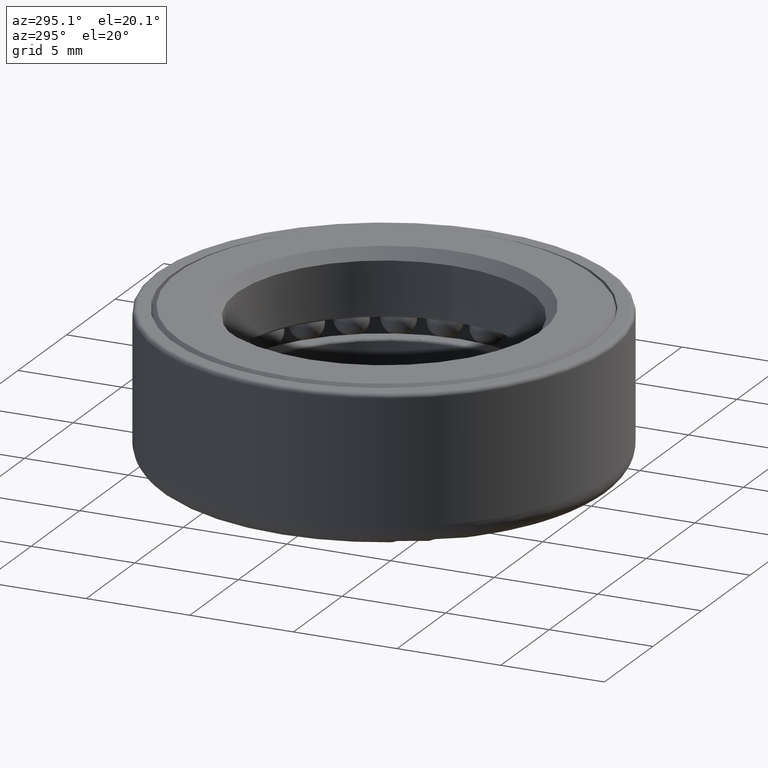
[diagram: clean part render]
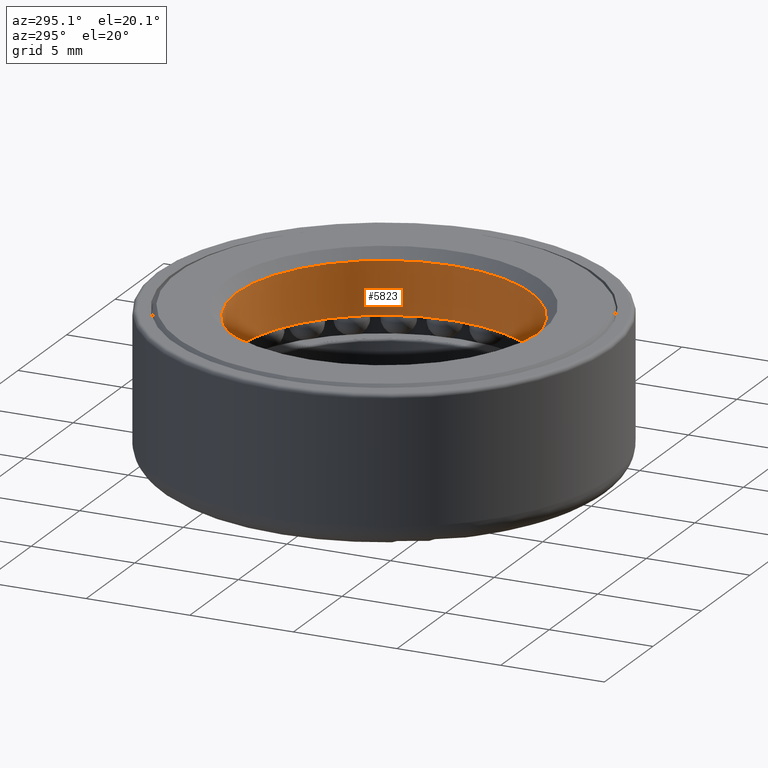
[diagram: same view with one face highlighted and labeled with its STEP entity id]
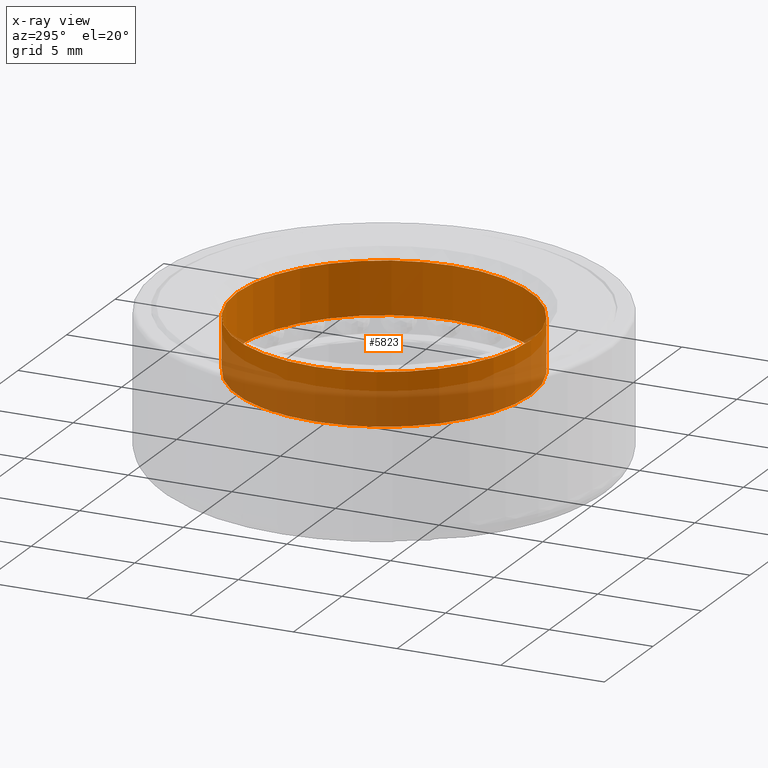
[diagram: x-ray of the same camera — body ghosted, the highlighted face saturated]
A machine part, auxiliary view. The second image highlights one B-rep face of the part: STEP entity #5823.
The next image is the same camera in x-ray: the body ghosted, the highlighted face saturated — about 35% of this face is hidden behind the body in this view.
In plain terms, the highlighted cylindrical surface (bore or boss wall) has radius 7.1 mm, axis along (-0, -0, 1).
Its self-contained STEP definition (entity closure, byte-faithful):
#150 = EDGE_LOOP ( 'NONE', ( #6034 ) ) ;
#338 = CIRCLE ( 'NONE', #4459, 7.099999999999999600 ) ;
#1003 = ORIENTED_EDGE ( 'NONE', *, *, #8392, .T. ) ;
#2519 = FACE_OUTER_BOUND ( 'NONE', #8297, .T. ) ;
#2907 = CYLINDRICAL_SURFACE ( 'NONE', #8857, 7.099999999999999600 ) ;
#3216 = CARTESIAN_POINT ( 'NONE',  ( 0.0000000000000000000, 0.0000000000000000000, 0.5999999999999999800 ) ) ;
#3328 = CIRCLE ( 'NONE', #4267, 7.099999999999999600 ) ;
#3526 = DIRECTION ( 'NONE',  ( 0.0000000000000000000, 0.0000000000000000000, 1.000000000000000000 ) ) ;
#3655 = VERTEX_POINT ( 'NONE', #6388 ) ;
#4267 = AXIS2_PLACEMENT_3D ( 'NONE', #9695, #3526, #7443 ) ;
#4459 = AXIS2_PLACEMENT_3D ( 'NONE', #3216, #7896, #9328 ) ;
#4934 = DIRECTION ( 'NONE',  ( -0.0000000000000000000, -0.0000000000000000000, 1.000000000000000000 ) ) ;
#5661 = DIRECTION ( 'NONE',  ( 1.000000000000000000, 0.0000000000000000000, 0.0000000000000000000 ) ) ;
#5823 = ADVANCED_FACE ( 'NONE', ( #2519, #8396 ), #2907, .F. ) ;
#6034 = ORIENTED_EDGE ( 'NONE', *, *, #8638, .T. ) ;
#6340 = CARTESIAN_POINT ( 'NONE',  ( 0.0000000000000000000, 0.0000000000000000000, 0.0000000000000000000 ) ) ;
#6388 = CARTESIAN_POINT ( 'NONE',  ( -7.099999999999999600, 0.0000000000000000000, 3.150000000000007000 ) ) ;
#7062 = CARTESIAN_POINT ( 'NONE',  ( 7.099999999999999600, 0.0000000000000000000, 0.5999999999999999800 ) ) ;
#7443 = DIRECTION ( 'NONE',  ( -1.000000000000000000, 0.0000000000000000000, 0.0000000000000000000 ) ) ;
#7896 = DIRECTION ( 'NONE',  ( 0.0000000000000000000, 0.0000000000000000000, -1.000000000000000000 ) ) ;
#8297 = EDGE_LOOP ( 'NONE', ( #1003 ) ) ;
#8392 = EDGE_CURVE ( 'NONE', #8419, #8419, #338, .T. ) ;
#8396 = FACE_OUTER_BOUND ( 'NONE', #150, .T. ) ;
#8419 = VERTEX_POINT ( 'NONE', #7062 ) ;
#8638 = EDGE_CURVE ( 'NONE', #3655, #3655, #3328, .T. ) ;
#8857 = AXIS2_PLACEMENT_3D ( 'NONE', #6340, #4934, #5661 ) ;
#9328 = DIRECTION ( 'NONE',  ( 1.000000000000000000, 0.0000000000000000000, 0.0000000000000000000 ) ) ;
#9695 = CARTESIAN_POINT ( 'NONE',  ( 0.0000000000000000000, 0.0000000000000000000, 3.150000000000007000 ) ) ;